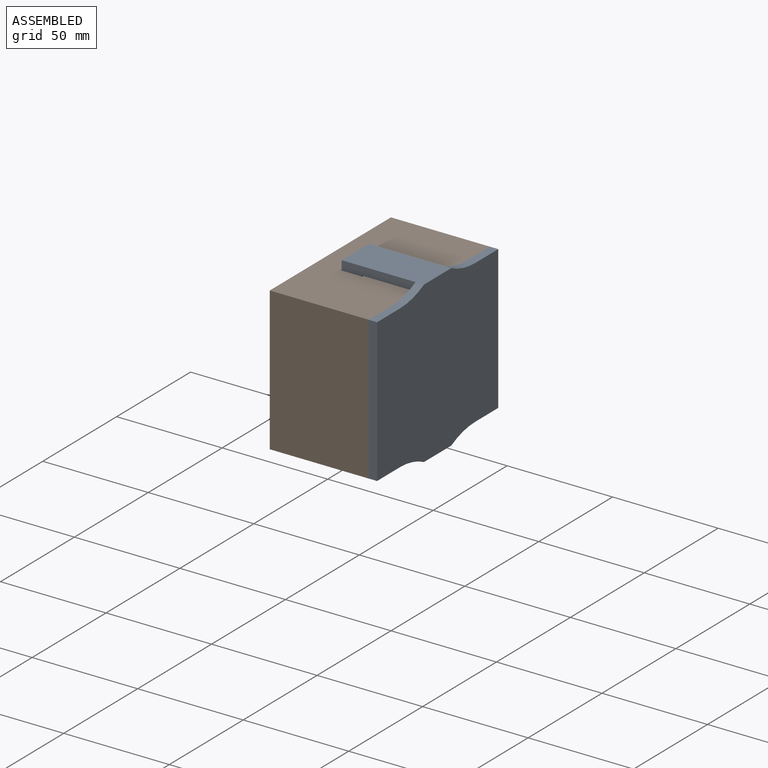
[diagram: assembled view]
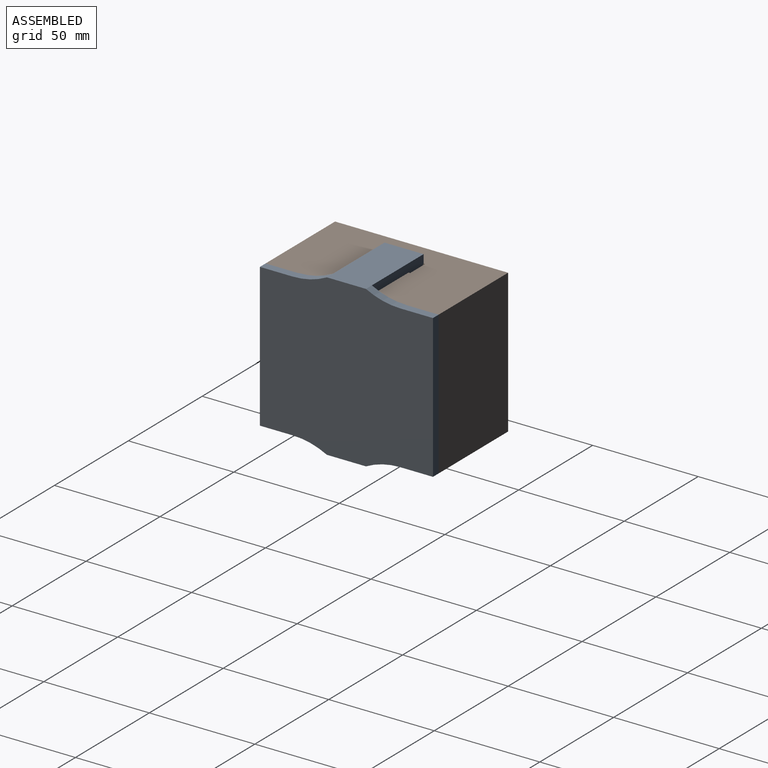
[diagram: assembled view, second angle]
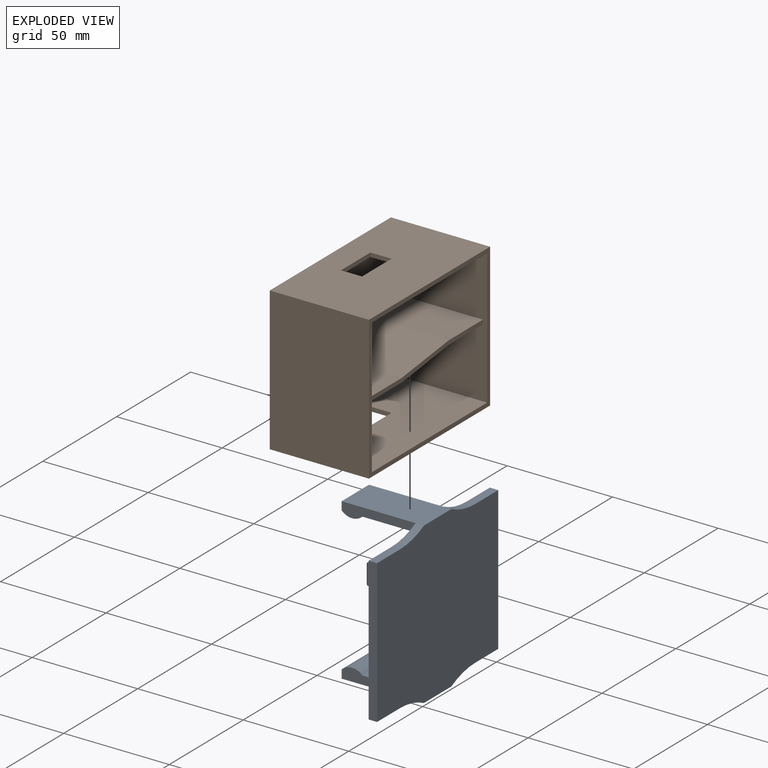
[diagram: exploded view]
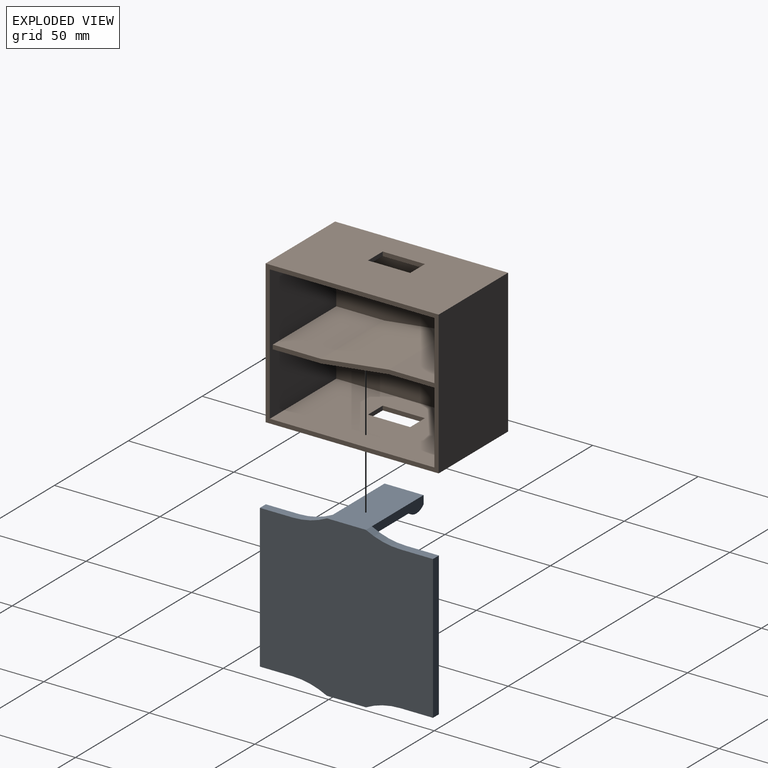
[diagram: exploded view, second angle]
ASSEMBLY  parts=2 mates=2
PART A: 47 faces, bbox 76x82x39 mm
  f0: plane 25.2x18.5mm, normal (-1,0,0), area 466.2mm2, adj f6,f19,f20,f38
  f1: plane 25.2x18.5mm, normal (1,0,0), area 466.2mm2, adj f6,f15,f17,f37
  f2: plane 54x2mm, normal (0,-1,0), area 108mm2, adj f6,f13,f14,f24
  f3: plane 68x2mm, normal (1,0,0), area 136mm2, adj f6,f12,f14,f27
  f4: plane 15.5x4mm, normal (1,0,0), area 62mm2, adj f6,f8,f11,f43
  f5: plane 15.5x4mm, normal (-1,0,0), area 62mm2, adj f6,f8,f11,f46
  f6: plane 82x76mm, normal (0,0,1), area 668.6mm2, adj f0,f1,f2,f3,f4,f5,f7,f8
  f7: plane 15.5x4mm, normal (-1,0,0), area 62mm2, adj f6,f10,f11,f45
  f8: plane 68x4mm, normal (0,-1,0), area 272mm2, adj f4,f5,f6,f11
  f9: plane 15.5x4mm, normal (1,0,0), area 62mm2, adj f6,f10,f11,f44
  f10: plane 68x4mm, normal (0,1,0), area 272mm2, adj f6,f7,f9,f11
  f11: plane 82x76mm, normal (0,0,-1), area 5808.6mm2, adj f4,f5,f7,f8,f9,f10,f16,f21
  f12: plane 54x2mm, normal (0,1,0), area 108mm2, adj f3,f6,f14,f34
  f13: plane 68x2mm, normal (-1,0,0), area 136mm2, adj f2,f6,f14,f31
  f14: plane 78x64mm, normal (0,0,1), area 4920mm2, adj f2,f3,f12,f13,f23,f24,f27,f28
  f15: plane 35x6mm, normal (0,1,0), area 153.5mm2, adj f1,f6,f16,f18,f37
  f16: plane 39x18.5mm, normal (-1,0,0), area 721.5mm2, adj f11,f15,f17,f18,f45,f46
  f17: plane 35x6mm, normal (0,-1,0), area 153.5mm2, adj f1,f6,f16,f18,f37
  f18: plane 18.5x4mm, normal (0,0,1), area 74mm2, adj f15,f16,f17,f37
  f19: plane 35x6mm, normal (0,1,0), area 153.5mm2, adj f0,f6,f21,f22,f38
  f20: plane 35x6mm, normal (0,-1,0), area 153.5mm2, adj f0,f6,f21,f22,f38
  f21: plane 39x18.5mm, normal (1,0,0), area 721.5mm2, adj f11,f19,f20,f22,f43,f44
  f22: plane 18.5x4mm, normal (0,0,1), area 74mm2, adj f19,f20,f21,f38
  f23: plane 8x5mm, normal (0,-1,0), area 40mm2, adj f14,f24,f28,f29
  f24: plane 5x2mm, normal (1,0,0), area 9.5mm2, adj f2,f14,f23,f25,f29,f41
  f25: plane 10x2mm, normal (0,1,0), area 20mm2, adj f6,f24,f26,f41
  f26: plane 10x2mm, normal (-1,0,0), area 20mm2, adj f6,f25,f27,f42
  f27: plane 5x2mm, normal (0,-1,0), area 9.5mm2, adj f3,f14,f26,f28,f29,f42
  f28: plane 8x5mm, normal (1,0,0), area 40mm2, adj f14,f23,f27,f29
  f29: plane 9x9mm, normal (0,0,1), area 17mm2, adj f23,f24,f27,f28,f41,f42
  f30: plane 10x2mm, normal (1,0,0), area 20mm2, adj f6,f31,f35,f39
  f31: plane 5x2mm, normal (0,1,0), area 9.5mm2, adj f13,f14,f30,f32,f36,f39
  f32: plane 8x5mm, normal (-1,0,0), area 40mm2, adj f14,f31,f33,f36
  f33: plane 8x5mm, normal (0,1,0), area 40mm2, adj f14,f32,f34,f36
  f34: plane 5x2mm, normal (-1,0,0), area 9.5mm2, adj f12,f14,f33,f35,f36,f40
  f35: plane 10x2mm, normal (0,-1,0), area 20mm2, adj f6,f30,f34,f40
  f36: plane 9x9mm, normal (0,0,1), area 17mm2, adj f31,f32,f33,f34,f39,f40
  f37: cylinder r=7mm len=18.5mm, axis (0,-1,0), area 200.8mm2, adj f1,f15,f17,f18
  f38: cylinder r=7mm len=18.5mm, axis (0,-1,0), area 200.8mm2, adj f0,f19,f20,f22
  f39: plane 10x1mm, normal (0.71,0,0.71), area 13.4mm2, adj f30,f31,f36,f40
  f40: plane 10x1mm, normal (0,-0.71,0.71), area 13.4mm2, adj f34,f35,f36,f39
  f41: plane 10x1mm, normal (0,0.71,0.71), area 13.4mm2, adj f24,f25,f29,f42
  f42: plane 10x1mm, normal (-0.71,0,0.71), area 13.4mm2, adj f26,f27,f29,f41
  f43: cylinder r=35mm len=16.25mm, axis (0,0,-1), area 67.6mm2, adj f4,f6,f11,f21
  f44: cylinder r=35mm len=16.25mm, axis (0,0,-1), area 67.6mm2, adj f6,f9,f11,f21
  f45: cylinder r=35mm len=16.25mm, axis (0,0,1), area 67.6mm2, adj f6,f7,f11,f16
  f46: cylinder r=35mm len=16.25mm, axis (0,0,1), area 67.6mm2, adj f5,f6,f11,f16
PART B: 27 faces, bbox 68x82x47 mm
  f0: plane 64x45mm, normal (0,1,0), area 2794mm2, adj f1,f2,f3,f6,f10,f20,f23,f24
  f1: plane 78x33mm, normal (0,0,1), area 2417.8mm2, adj f0,f3,f7,f21,f24,f25
  f2: plane 78x33mm, normal (0,0,1), area 2417.8mm2, adj f0,f6,f7,f22,f23,f26
  f3: plane 78x45mm, normal (1,0,0), area 3310mm2, adj f0,f1,f7,f10,f16,f17,f18,f19
  f4: plane 82x47mm, normal (-1,0,0), area 3654mm2, adj f8,f9,f10,f11,f16,f17,f18,f19
  f5: plane 82x47mm, normal (1,0,0), area 3654mm2, adj f8,f9,f10,f11,f12,f13,f14,f15
  f6: plane 78x45mm, normal (-1,0,0), area 3310mm2, adj f0,f2,f7,f10,f12,f13,f14,f15
  f7: plane 64x45mm, normal (0,-1,0), area 2794mm2, adj f1,f2,f3,f6,f10,f20,f21,f22
  f8: plane 68x47mm, normal (0,1,0), area 3196mm2, adj f4,f5,f10,f11
  f9: plane 68x47mm, normal (0,-1,0), area 3196mm2, adj f4,f5,f10,f11
  f10: plane 82x68mm, normal (0,0,1), area 584mm2, adj f0,f3,f4,f5,f6,f7,f8,f9
  f11: plane 82x68mm, normal (0,0,-1), area 5576mm2, adj f4,f5,f8,f9
  f12: plane 10x2mm, normal (0,-1,0), area 20mm2, adj f5,f6,f13,f15
  f13: plane 20x2mm, normal (0,0,1), area 40mm2, adj f5,f6,f12,f14
  f14: plane 10x2mm, normal (0,1,0), area 20mm2, adj f5,f6,f13,f15
  f15: plane 20x2mm, normal (0,0,-1), area 40mm2, adj f5,f6,f12,f14
  f16: plane 20x2mm, normal (0,0,-1), area 40mm2, adj f3,f4,f17,f19
  f17: plane 10x2mm, normal (0,1,0), area 20mm2, adj f3,f4,f16,f18
  f18: plane 20x2mm, normal (0,0,1), area 40mm2, adj f3,f4,f17,f19
  f19: plane 10x2mm, normal (0,-1,0), area 20mm2, adj f3,f4,f16,f18
  f20: plane 78x6mm, normal (0,0,1), area 156.5mm2, adj f0,f7,f21,f22,f23,f24,f25,f26
  f21: plane 43x23mm, normal (-1,0,0), area 989mm2, adj f1,f7,f20,f25
  f22: plane 43x22.88mm, normal (1,0,0), area 983.7mm2, adj f2,f7,f20,f26
  f23: plane 43x23mm, normal (1,0,0), area 989mm2, adj f0,f2,f20,f26
  f24: plane 43x22.88mm, normal (-1,0,0), area 983.7mm2, adj f0,f1,f20,f25
  f25: plane 43x32.12mm, normal (-0.99,-0.12,0), area 1392mm2, adj f1,f20,f21,f24
  f26: plane 43x32.12mm, normal (0.99,0.12,0), area 1392mm2, adj f2,f20,f22,f23
PLACE A rot(axis=(0,-1,0),90deg) t=(50.85,-82,0)mm
PLACE B rot(axis=(0.71,0,0.71),180deg) t=(2,-2,2)mm
MATE planar A.f0 <-> B.f5  axis (0,0,-1) through (34.25,-41,68)mm
MATE planar A.f8 <-> B.f8  axis (0,-1,0) through (48.85,-82,34)mm
